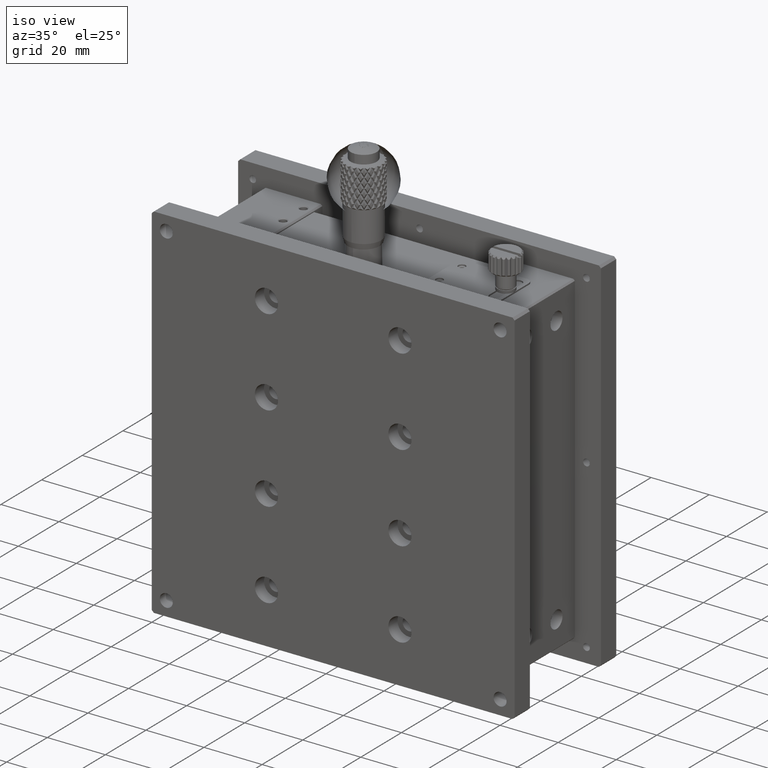
[diagram: clean part render]
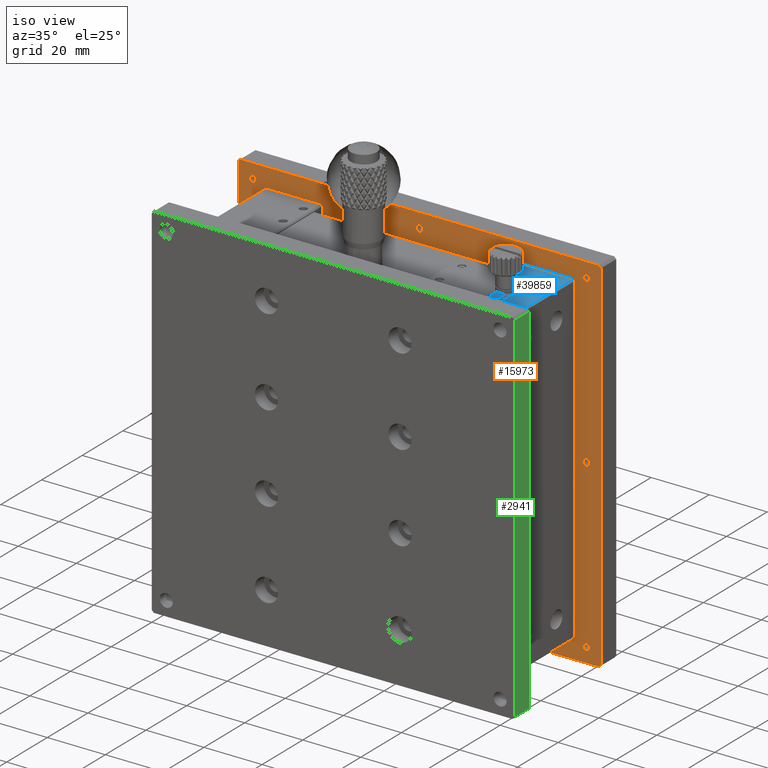
[diagram: same view with three faces highlighted in distinct colors, each labeled with its STEP entity id]
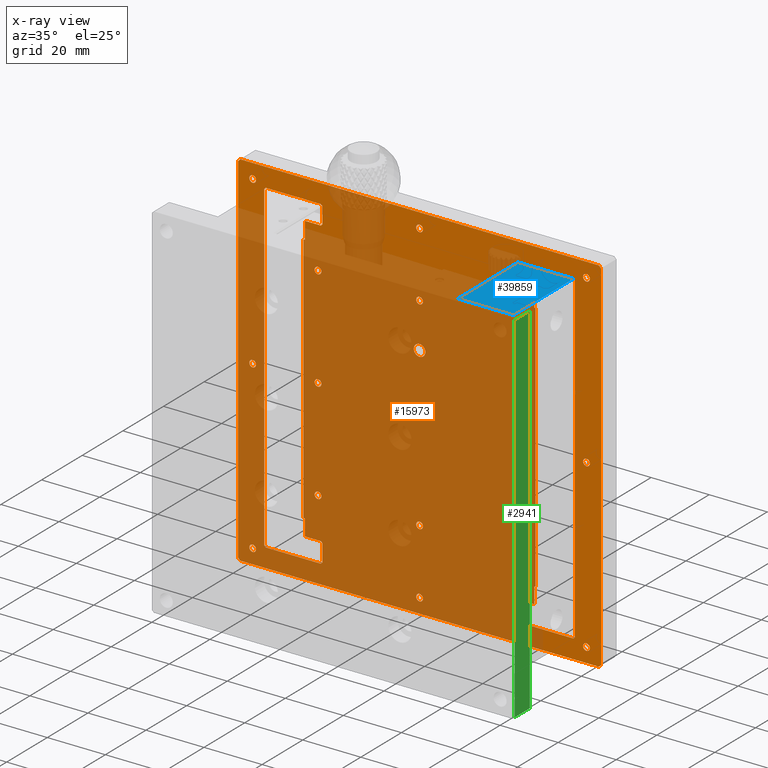
[diagram: x-ray of the same camera — body ghosted, the three highlighted faces saturated]
A machine part, iso view with three faces highlighted in distinct colors.
The next image is the same camera in x-ray (body ghosted, the three faces saturated) — at least one of them is partly hidden behind the body in this view.
Their STEP definitions:

[orange] entity #15973 — the highlighted planar face has unit normal (0, 1, 0).
#246 = DIRECTION ( 'NONE',  ( 0.000000000000000000, 0.000000000000000000, 1.000000000000000000 ) ) ;
#305 = EDGE_LOOP ( 'NONE', ( #38201 ) ) ;
#390 = CARTESIAN_POINT ( 'NONE',  ( 5.000000000000000000, 42.50000000002975753, -118.8321397411868929 ) ) ;
#461 = DIRECTION ( 'NONE',  ( -0.000000000000000000, 0.000000000000000000, -1.000000000000000000 ) ) ;
#503 = CIRCLE ( 'NONE', #21934, 1.167860258874497958 ) ;
#520 = LINE ( 'NONE', #36775, #32795 ) ;
#539 = AXIS2_PLACEMENT_3D ( 'NONE', #27874, #16048, #12284 ) ;
#616 = AXIS2_PLACEMENT_3D ( 'NONE', #2812, #43888, #14640 ) ;
#697 = DIRECTION ( 'NONE',  ( 0.000000000000000000, -0.000000000000000000, 1.000000000000000000 ) ) ;
#756 = DIRECTION ( 'NONE',  ( -0.7071067811865470176, -0.000000000000000000, -0.7071067811865480168 ) ) ;
#760 = ORIENTED_EDGE ( 'NONE', *, *, #20155, .F. ) ;
#824 = LINE ( 'NONE', #41628, #23276 ) ;
#859 = EDGE_LOOP ( 'NONE', ( #52908 ) ) ;
#867 = EDGE_CURVE ( 'NONE', #42678, #47404, #929, .T. ) ;
#900 = CARTESIAN_POINT ( 'NONE',  ( 23.00000000000000000, 42.50000000000000000, -105.9000000000000057 ) ) ;
#929 = LINE ( 'NONE', #37965, #12150 ) ;
#963 = ORIENTED_EDGE ( 'NONE', *, *, #12382, .F. ) ;
#1059 = LINE ( 'NONE', #17439, #40890 ) ;
#1111 = EDGE_CURVE ( 'NONE', #33519, #9800, #29271, .T. ) ;
#1257 = LINE ( 'NONE', #5275, #12554 ) ;
#1340 = ORIENTED_EDGE ( 'NONE', *, *, #31350, .F. ) ;
#1373 = EDGE_LOOP ( 'NONE', ( #31666, #30723, #37780, #44321, #20513, #39236, #35614, #43302 ) ) ;
#1479 = EDGE_CURVE ( 'NONE', #21884, #21884, #9593, .T. ) ;
#1483 = EDGE_CURVE ( 'NONE', #7376, #45803, #51121, .T. ) ;
#1519 = VERTEX_POINT ( 'NONE', #46328 ) ;
#1557 = DIRECTION ( 'NONE',  ( -1.000000000000000000, -0.000000000000000000, 0.000000000000000000 ) ) ;
#1641 = ORIENTED_EDGE ( 'NONE', *, *, #49881, .F. ) ;
#1747 = DIRECTION ( 'NONE',  ( 0.000000000000000000, -0.000000000000000000, 1.000000000000000000 ) ) ;
#1819 = LINE ( 'NONE', #29484, #11221 ) ;
#1887 = VERTEX_POINT ( 'NONE', #52388 ) ;
#1935 = LINE ( 'NONE', #14555, #20259 ) ;
#2117 = VERTEX_POINT ( 'NONE', #30373 ) ;
#2173 = CIRCLE ( 'NONE', #29604, 1.167860258842665866 ) ;
#2212 = EDGE_CURVE ( 'NONE', #47404, #15930, #520, .T. ) ;
#2397 = AXIS2_PLACEMENT_3D ( 'NONE', #28428, #44304, #48820 ) ;
#2492 = CARTESIAN_POINT ( 'NONE',  ( 27.50000000000000000, 42.50000000000682121, -26.33213974115733436 ) ) ;
#2582 = CARTESIAN_POINT ( 'NONE',  ( 115.5000000000000000, 42.50000000000000711, -118.5000000000000142 ) ) ;
#2584 = CARTESIAN_POINT ( 'NONE',  ( 97.50000000000000000, 42.50000000002975753, -61.33213974112550204 ) ) ;
#2798 = LINE ( 'NONE', #39585, #41528 ) ;
#2812 = CARTESIAN_POINT ( 'NONE',  ( 62.50000000000000000, 42.50000000000682121, -5.000000000000030198 ) ) ;
#3062 = EDGE_CURVE ( 'NONE', #45803, #3889, #29407, .T. ) ;
#3541 = EDGE_CURVE ( 'NONE', #37758, #44939, #18172, .T. ) ;
#3681 = CARTESIAN_POINT ( 'NONE',  ( 29.00000000000000355, 42.50000000000000711, -112.0000000000000142 ) ) ;
#3711 = CARTESIAN_POINT ( 'NONE',  ( 29.00000000000000000, 42.50000000000001421, -12.69999999999999929 ) ) ;
#3889 = VERTEX_POINT ( 'NONE', #29412 ) ;
#3969 = FACE_BOUND ( 'NONE', #37787, .T. ) ;
#4056 = CARTESIAN_POINT ( 'NONE',  ( 0.000000000000000000, 42.50000000000000000, -13.19999999999999929 ) ) ;
#4237 = FACE_BOUND ( 'NONE', #859, .T. ) ;
#4333 = VECTOR ( 'NONE', #25128, 1000.000000000000000 ) ;
#4335 = CARTESIAN_POINT ( 'NONE',  ( 96.50000000000000000, 42.50000000000001421, -118.5000000000000142 ) ) ;
#4404 = DIRECTION ( 'NONE',  ( -0.7071067811865480168, -0.000000000000000000, 0.7071067811865470176 ) ) ;
#4524 = ORIENTED_EDGE ( 'NONE', *, *, #31546, .F. ) ;
#4667 = VERTEX_POINT ( 'NONE', #20842 ) ;
#4707 = CARTESIAN_POINT ( 'NONE',  ( 96.00000000000000000, 42.50000000000000000, -7.000000000000000000 ) ) ;
#4807 = CARTESIAN_POINT ( 'NONE',  ( 0.000000000000000000, 42.50000000000000000, -118.5000000000000142 ) ) ;
#5062 = EDGE_CURVE ( 'NONE', #21360, #39017, #42222, .T. ) ;
#5174 = DIRECTION ( 'NONE',  ( -0.000000000000000000, 0.000000000000000000, -1.000000000000000000 ) ) ;
#5235 = LINE ( 'NONE', #34242, #4333 ) ;
#5275 = CARTESIAN_POINT ( 'NONE',  ( 23.00000000000000000, 42.50000000000000000, -19.10000000000000142 ) ) ;
#5395 = DIRECTION ( 'NONE',  ( 0.000000000000000000, 0.000000000000000000, 1.000000000000000000 ) ) ;
#5401 = ORIENTED_EDGE ( 'NONE', *, *, #49412, .F. ) ;
#5502 = CARTESIAN_POINT ( 'NONE',  ( 96.00000000000000000, 42.50000000000000000, -7.000000000000000000 ) ) ;
#5696 = DIRECTION ( 'NONE',  ( -0.000000000000000000, 0.000000000000000000, -1.000000000000000000 ) ) ;
#5768 = FACE_BOUND ( 'NONE', #50552, .T. ) ;
#5837 = LINE ( 'NONE', #38318, #42913 ) ;
#5950 = DIRECTION ( 'NONE',  ( 0.000000000000000000, -1.000000000000000000, -0.000000000000000000 ) ) ;
#6031 = CARTESIAN_POINT ( 'NONE',  ( 96.00000000000000000, 42.50000000000000711, -12.70000000000000107 ) ) ;
#6166 = DIRECTION ( 'NONE',  ( 0.000000000000000000, -0.000000000000000000, 1.000000000000000000 ) ) ;
#6167 = ORIENTED_EDGE ( 'NONE', *, *, #44273, .F. ) ;
#6393 = EDGE_CURVE ( 'NONE', #8123, #23644, #35473, .T. ) ;
#6664 = LINE ( 'NONE', #26802, #39804 ) ;
#6689 = DIRECTION ( 'NONE',  ( 2.675390925547714710E-16, -1.000000000000000000, -0.000000000000000000 ) ) ;
#6718 = VERTEX_POINT ( 'NONE', #32954 ) ;
#6751 = EDGE_LOOP ( 'NONE', ( #760 ) ) ;
#6917 = VECTOR ( 'NONE', #756, 1000.000000000000000 ) ;
#7008 = CARTESIAN_POINT ( 'NONE',  ( 22.50000000000000000, 42.50000000000000000, -105.9000000000000057 ) ) ;
#7206 = CARTESIAN_POINT ( 'NONE',  ( 102.0000000000000142, 42.50000000000000000, -105.9000000000000057 ) ) ;
#7239 = EDGE_CURVE ( 'NONE', #32059, #32059, #39776, .T. ) ;
#7293 = VERTEX_POINT ( 'NONE', #2492 ) ;
#7374 = DIRECTION ( 'NONE',  ( 0.000000000000000000, 0.000000000000000000, 1.000000000000000000 ) ) ;
#7376 = VERTEX_POINT ( 'NONE', #29547 ) ;
#7773 = EDGE_CURVE ( 'NONE', #48497, #1519, #1819, .T. ) ;
#7809 = VERTEX_POINT ( 'NONE', #41558 ) ;
#7812 = EDGE_CURVE ( 'NONE', #30410, #47089, #42075, .T. ) ;
#7940 = LINE ( 'NONE', #37468, #41784 ) ;
#8011 = VERTEX_POINT ( 'NONE', #48281 ) ;
#8042 = EDGE_CURVE ( 'NONE', #33335, #33519, #5235, .T. ) ;
#8123 = VERTEX_POINT ( 'NONE', #48616 ) ;
#8251 = CIRCLE ( 'NONE', #539, 1.167860258813102625 ) ;
#8265 = PLANE ( 'NONE',  #45990 ) ;
#8327 = DIRECTION ( 'NONE',  ( 0.7071067811865416886, 0.000000000000000000, -0.7071067811865532349 ) ) ;
#8439 = CIRCLE ( 'NONE', #51289, 1.167860258874497958 ) ;
#8449 = CARTESIAN_POINT ( 'NONE',  ( 120.0000000000000000, 42.50000000000682121, -3.832139741120954568 ) ) ;
#8452 = EDGE_CURVE ( 'NONE', #16365, #12725, #39466, .T. ) ;
#8551 = ORIENTED_EDGE ( 'NONE', *, *, #3062, .F. ) ;
#8977 = DIRECTION ( 'NONE',  ( 0.7071067811865460184, -0.000000000000000000, -0.7071067811865489050 ) ) ;
#8983 = DIRECTION ( 'NONE',  ( 0.7071067811865474617, -0.000000000000000000, 0.7071067811865474617 ) ) ;
#9226 = VERTEX_POINT ( 'NONE', #390 ) ;
#9230 = AXIS2_PLACEMENT_3D ( 'NONE', #48425, #9867, #7374 ) ;
#9272 = VECTOR ( 'NONE', #37625, 1000.000000000000000 ) ;
#9291 = CARTESIAN_POINT ( 'NONE',  ( 0.000000000000000000, 42.50000000000000000, -118.5000000000000142 ) ) ;
#9446 = CARTESIAN_POINT ( 'NONE',  ( 9.000000000000001776, 42.50000000000000000, 0.000000000000000000 ) ) ;
#9529 = ORIENTED_EDGE ( 'NONE', *, *, #41080, .F. ) ;
#9582 = ORIENTED_EDGE ( 'NONE', *, *, #25888, .F. ) ;
#9584 = EDGE_CURVE ( 'NONE', #24498, #7809, #5837, .T. ) ;
#9593 = CIRCLE ( 'NONE', #15633, 1.167860258849490185 ) ;
#9607 = DIRECTION ( 'NONE',  ( 1.000000000000000000, 0.000000000000000000, -0.000000000000000000 ) ) ;
#9647 = CARTESIAN_POINT ( 'NONE',  ( 23.00000000000000000, 42.50000000000000000, 0.000000000000000000 ) ) ;
#9690 = CARTESIAN_POINT ( 'NONE',  ( 120.0000000000000000, 42.50000000002975753, -62.50000000000000000 ) ) ;
#9762 = EDGE_CURVE ( 'NONE', #52682, #52682, #49731, .T. ) ;
#9770 = CARTESIAN_POINT ( 'NONE',  ( 116.0000000000000000, 42.50000000000001421, -118.0000000000000142 ) ) ;
#9800 = VERTEX_POINT ( 'NONE', #32416 ) ;
#9806 = VECTOR ( 'NONE', #9607, 1000.000000000000000 ) ;
#9867 = DIRECTION ( 'NONE',  ( 0.000000000000000000, -1.000000000000000000, -0.000000000000000000 ) ) ;
#9947 = AXIS2_PLACEMENT_3D ( 'NONE', #40792, #24969, #37563 ) ;
#10149 = EDGE_CURVE ( 'NONE', #41650, #42678, #34613, .T. ) ;
#10172 = CARTESIAN_POINT ( 'NONE',  ( 115.5000000000000000, 42.50000000000000000, -6.500000000000000888 ) ) ;
#10297 = DIRECTION ( 'NONE',  ( 0.000000000000000000, 0.000000000000000000, 1.000000000000000000 ) ) ;
#10334 = EDGE_CURVE ( 'NONE', #25351, #39975, #40237, .T. ) ;
#10430 = CIRCLE ( 'NONE', #37813, 2.000000000000008882 ) ;
#10611 = VECTOR ( 'NONE', #46042, 1000.000000000000000 ) ;
#10647 = ORIENTED_EDGE ( 'NONE', *, *, #17182, .F. ) ;
#10667 = ORIENTED_EDGE ( 'NONE', *, *, #28990, .F. ) ;
#10712 = DIRECTION ( 'NONE',  ( -0.7071067811865500152, 0.000000000000000000, 0.7071067811865450192 ) ) ;
#10872 = CARTESIAN_POINT ( 'NONE',  ( 102.0000000000000142, 42.50000000000000000, -19.10000000000000142 ) ) ;
#10951 = VECTOR ( 'NONE', #39994, 1000.000000000000000 ) ;
#10958 = CARTESIAN_POINT ( 'NONE',  ( 124.2900000000000205, 42.50000000000000000, -3.469446951953613400E-15 ) ) ;
#11039 = ORIENTED_EDGE ( 'NONE', *, *, #1479, .F. ) ;
#11056 = LINE ( 'NONE', #7008, #50915 ) ;
#11221 = VECTOR ( 'NONE', #1557, 1000.000000000000000 ) ;
#11257 = CARTESIAN_POINT ( 'NONE',  ( 23.00000000000000000, 42.50000000000000000, -111.5000000000000000 ) ) ;
#11528 = CARTESIAN_POINT ( 'NONE',  ( 97.50000000000000000, 42.50000000000682121, -26.33213974115733436 ) ) ;
#11755 = VECTOR ( 'NONE', #40480, 1000.000000000000114 ) ;
#12029 = EDGE_CURVE ( 'NONE', #7809, #27112, #29418, .T. ) ;
#12038 = CARTESIAN_POINT ( 'NONE',  ( 125.0000000000000000, 42.50000000000000000, -124.2899999999999920 ) ) ;
#12051 = ORIENTED_EDGE ( 'NONE', *, *, #36260, .F. ) ;
#12126 = ORIENTED_EDGE ( 'NONE', *, *, #51674, .F. ) ;
#12150 = VECTOR ( 'NONE', #17305, 1000.000000000000114 ) ;
#12284 = DIRECTION ( 'NONE',  ( 0.000000000000000000, 0.000000000000000000, 1.000000000000000000 ) ) ;
#12295 = VECTOR ( 'NONE', #15075, 1000.000000000000000 ) ;
#12297 = FACE_BOUND ( 'NONE', #40356, .T. ) ;
#12333 = EDGE_CURVE ( 'NONE', #4667, #33335, #824, .T. ) ;
#12382 = EDGE_CURVE ( 'NONE', #30151, #30151, #10430, .T. ) ;
#12554 = VECTOR ( 'NONE', #21668, 1000.000000000000000 ) ;
#12570 = FACE_BOUND ( 'NONE', #28538, .T. ) ;
#12603 = ORIENTED_EDGE ( 'NONE', *, *, #7239, .F. ) ;
#12725 = VERTEX_POINT ( 'NONE', #20463 ) ;
#12772 = LINE ( 'NONE', #33954, #23750 ) ;
#13241 = ORIENTED_EDGE ( 'NONE', *, *, #9584, .F. ) ;
#13252 = ORIENTED_EDGE ( 'NONE', *, *, #19051, .F. ) ;
#13457 = DIRECTION ( 'NONE',  ( -0.000000000000000000, -1.000000000000000000, -0.000000000000000000 ) ) ;
#13570 = DIRECTION ( 'NONE',  ( -1.000000000000000000, 0.000000000000000000, -0.000000000000000000 ) ) ;
#13853 = EDGE_LOOP ( 'NONE', ( #50687 ) ) ;
#13974 = ORIENTED_EDGE ( 'NONE', *, *, #14874, .F. ) ;
#14105 = AXIS2_PLACEMENT_3D ( 'NONE', #21999, #38638, #26008 ) ;
#14130 = DIRECTION ( 'NONE',  ( 2.675390925547706328E-16, -1.000000000000000000, -0.000000000000000000 ) ) ;
#14249 = DIRECTION ( 'NONE',  ( 0.7071067811865474617, -0.000000000000000000, -0.7071067811865474617 ) ) ;
#14488 = DIRECTION ( 'NONE',  ( -1.000000000000000000, 0.000000000000000000, 0.000000000000000000 ) ) ;
#14555 = CARTESIAN_POINT ( 'NONE',  ( 0.000000000000000000, 42.50000000000000000, -6.500000000000000888 ) ) ;
#14640 = DIRECTION ( 'NONE',  ( 0.000000000000000000, 0.000000000000000000, 1.000000000000000000 ) ) ;
#14673 = DIRECTION ( 'NONE',  ( -0.000000000000000000, 0.000000000000000000, -1.000000000000000000 ) ) ;
#14874 = EDGE_CURVE ( 'NONE', #41354, #25351, #1257, .T. ) ;
#15075 = DIRECTION ( 'NONE',  ( -0.7071067811865480168, -0.000000000000000000, 0.7071067811865470176 ) ) ;
#15202 = AXIS2_PLACEMENT_3D ( 'NONE', #16945, #30096, #37603 ) ;
#15219 = CARTESIAN_POINT ( 'NONE',  ( 102.0000000000000142, 42.50000000000000000, -105.9000000000000057 ) ) ;
#15456 = CARTESIAN_POINT ( 'NONE',  ( 62.50000000000000000, 42.50000000000682121, -26.33213974115733436 ) ) ;
#15633 = AXIS2_PLACEMENT_3D ( 'NONE', #34266, #14130, #50586 ) ;
#15739 = ORIENTED_EDGE ( 'NONE', *, *, #8452, .F. ) ;
#15930 = VERTEX_POINT ( 'NONE', #11257 ) ;
#15945 = CARTESIAN_POINT ( 'NONE',  ( 27.50000000000000000, 42.50000000002975753, -61.33213974112550204 ) ) ;
#15973 = ADVANCED_FACE ( 'NONE', ( #50550, #16314, #49050, #21612, #24380, #40744, #3969, #4237, #16579, #21875, #5768, #38245, #12570, #42549, #34230, #32700, #45310, #18110, #37974, #17578, #12297 ), #8265, .F. ) ;
#16025 = CARTESIAN_POINT ( 'NONE',  ( 27.50000000000000000, 42.50000000002975753, -62.50000000000000000 ) ) ;
#16033 = VERTEX_POINT ( 'NONE', #6031 ) ;
#16048 = DIRECTION ( 'NONE',  ( 0.000000000000000000, -1.000000000000000000, -0.000000000000000000 ) ) ;
#16095 = DIRECTION ( 'NONE',  ( 0.000000000000000000, -1.000000000000000000, -0.000000000000000000 ) ) ;
#16224 = LINE ( 'NONE', #33417, #25323 ) ;
#16314 = FACE_BOUND ( 'NONE', #21198, .T. ) ;
#16338 = LINE ( 'NONE', #40494, #10951 ) ;
#16365 = VERTEX_POINT ( 'NONE', #51294 ) ;
#16454 = VECTOR ( 'NONE', #8327, 1000.000000000000114 ) ;
#16579 = FACE_BOUND ( 'NONE', #51308, .T. ) ;
#16802 = EDGE_CURVE ( 'NONE', #6718, #33991, #27380, .T. ) ;
#16945 = CARTESIAN_POINT ( 'NONE',  ( 27.50000000000000000, 42.50000000000682121, -27.50000000000000000 ) ) ;
#16951 = ORIENTED_EDGE ( 'NONE', *, *, #16802, .F. ) ;
#17182 = EDGE_CURVE ( 'NONE', #3889, #43167, #7940, .T. ) ;
#17192 = DIRECTION ( 'NONE',  ( 0.7071067811865505703, 0.000000000000000000, 0.7071067811865444641 ) ) ;
#17305 = DIRECTION ( 'NONE',  ( -0.7071067811865474617, -0.000000000000000000, 0.7071067811865474617 ) ) ;
#17400 = ORIENTED_EDGE ( 'NONE', *, *, #2212, .F. ) ;
#17439 = CARTESIAN_POINT ( 'NONE',  ( 29.00000000000000000, 42.50000000000000000, 0.000000000000000000 ) ) ;
#17505 = VECTOR ( 'NONE', #5174, 1000.000000000000000 ) ;
#17528 = EDGE_CURVE ( 'NONE', #7293, #7293, #44376, .T. ) ;
#17536 = CIRCLE ( 'NONE', #47538, 1.167860258842665866 ) ;
#17578 = FACE_BOUND ( 'NONE', #27336, .T. ) ;
#17645 = CIRCLE ( 'NONE', #9947, 1.167860258874497958 ) ;
#17758 = EDGE_CURVE ( 'NONE', #16033, #51161, #38939, .T. ) ;
#17927 = DIRECTION ( 'NONE',  ( -0.7071067811865474617, -0.000000000000000000, -0.7071067811865474617 ) ) ;
#17991 = DIRECTION ( 'NONE',  ( 0.000000000000000000, 0.000000000000000000, 1.000000000000000000 ) ) ;
#18110 = FACE_BOUND ( 'NONE', #305, .T. ) ;
#18172 = LINE ( 'NONE', #33508, #27709 ) ;
#18244 = EDGE_CURVE ( 'NONE', #46772, #7376, #41117, .T. ) ;
#18350 = CARTESIAN_POINT ( 'NONE',  ( 28.99999999999999645, 42.50000000000000711, -118.0000000000000142 ) ) ;
#18564 = CARTESIAN_POINT ( 'NONE',  ( 9.500000000000000000, 42.50000000000000000, -6.500000000000000888 ) ) ;
#18702 = ORIENTED_EDGE ( 'NONE', *, *, #23175, .F. ) ;
#18744 = ORIENTED_EDGE ( 'NONE', *, *, #48200, .F. ) ;
#18921 = CARTESIAN_POINT ( 'NONE',  ( 26.33213974115050959, 42.49999999999560174, -97.50000000000000000 ) ) ;
#18930 = CARTESIAN_POINT ( 'NONE',  ( 23.00000000000000000, 42.50000000000000000, -13.19999999999999929 ) ) ;
#19051 = EDGE_CURVE ( 'NONE', #39017, #16365, #48902, .T. ) ;
#19323 = DIRECTION ( 'NONE',  ( -0.000000000000000000, 0.000000000000000000, -1.000000000000000000 ) ) ;
#19325 = CARTESIAN_POINT ( 'NONE',  ( 62.50000000000000000, 42.50000000002975753, -61.33213974112550204 ) ) ;
#19665 = LINE ( 'NONE', #4056, #43523 ) ;
#19810 = VERTEX_POINT ( 'NONE', #30246 ) ;
#20116 = EDGE_LOOP ( 'NONE', ( #1340 ) ) ;
#20155 = EDGE_CURVE ( 'NONE', #41097, #41097, #8439, .T. ) ;
#20163 = VECTOR ( 'NONE', #10297, 1000.000000000000000 ) ;
#20259 = VECTOR ( 'NONE', #51004, 1000.000000000000000 ) ;
#20425 = DIRECTION ( 'NONE',  ( 0.000000000000000000, 0.000000000000000000, 1.000000000000000000 ) ) ;
#20463 = CARTESIAN_POINT ( 'NONE',  ( 102.5000000000000142, 42.50000000000000000, -105.9000000000000057 ) ) ;
#20513 = ORIENTED_EDGE ( 'NONE', *, *, #1111, .F. ) ;
#20559 = EDGE_CURVE ( 'NONE', #50192, #1887, #31383, .T. ) ;
#20678 = CARTESIAN_POINT ( 'NONE',  ( 97.50000000000000000, 42.50000000000682121, -27.50000000000000000 ) ) ;
#20842 = CARTESIAN_POINT ( 'NONE',  ( 0.000000000000000000, 42.50000000000000000, -0.7099999999999925260 ) ) ;
#21046 = ORIENTED_EDGE ( 'NONE', *, *, #10149, .F. ) ;
#21198 = EDGE_LOOP ( 'NONE', ( #12603 ) ) ;
#21360 = VERTEX_POINT ( 'NONE', #48199 ) ;
#21612 = FACE_BOUND ( 'NONE', #31062, .T. ) ;
#21668 = DIRECTION ( 'NONE',  ( 1.000000000000000000, -0.000000000000000000, 0.000000000000000000 ) ) ;
#21875 = FACE_BOUND ( 'NONE', #28098, .T. ) ;
#21884 = VERTEX_POINT ( 'NONE', #18921 ) ;
#21887 = ORIENTED_EDGE ( 'NONE', *, *, #7812, .F. ) ;
#21899 = VECTOR ( 'NONE', #17927, 1000.000000000000114 ) ;
#21934 = AXIS2_PLACEMENT_3D ( 'NONE', #30299, #45604, #46657 ) ;
#21999 = CARTESIAN_POINT ( 'NONE',  ( 62.50000000000000000, 42.49999999999560174, -97.50000000000000000 ) ) ;
#22177 = VECTOR ( 'NONE', #13570, 1000.000000000000000 ) ;
#22391 = VERTEX_POINT ( 'NONE', #15219 ) ;
#22527 = EDGE_CURVE ( 'NONE', #47089, #22938, #51025, .T. ) ;
#22726 = CARTESIAN_POINT ( 'NONE',  ( 102.0000000000000142, 42.50000000000000000, 0.000000000000000000 ) ) ;
#22777 = DIRECTION ( 'NONE',  ( 0.7071067811865474617, -0.000000000000000000, 0.7071067811865474617 ) ) ;
#22819 = CARTESIAN_POINT ( 'NONE',  ( 23.00000000000000000, 42.50000000000000000, 0.000000000000000000 ) ) ;
#22882 = EDGE_CURVE ( 'NONE', #15930, #29245, #29553, .T. ) ;
#22938 = VERTEX_POINT ( 'NONE', #30613 ) ;
#23074 = CARTESIAN_POINT ( 'NONE',  ( 97.50000000000000000, 42.49999999999560174, -97.50000000000000000 ) ) ;
#23175 = EDGE_CURVE ( 'NONE', #1519, #19810, #28165, .T. ) ;
#23276 = VECTOR ( 'NONE', #17192, 1000.000000000000000 ) ;
#23331 = CARTESIAN_POINT ( 'NONE',  ( 0.7099999999999939693, 42.50000000000000000, -125.0000000000000000 ) ) ;
#23392 = DIRECTION ( 'NONE',  ( -1.000000000000000000, -0.000000000000000000, 0.000000000000000000 ) ) ;
#23644 = VERTEX_POINT ( 'NONE', #28132 ) ;
#23750 = VECTOR ( 'NONE', #8977, 1000.000000000000114 ) ;
#24084 = VECTOR ( 'NONE', #19323, 1000.000000000000000 ) ;
#24380 = FACE_BOUND ( 'NONE', #39418, .T. ) ;
#24498 = VERTEX_POINT ( 'NONE', #10172 ) ;
#24584 = EDGE_CURVE ( 'NONE', #50442, #50442, #8251, .T. ) ;
#24707 = ORIENTED_EDGE ( 'NONE', *, *, #18244, .F. ) ;
#24817 = CARTESIAN_POINT ( 'NONE',  ( 0.7099999999999894174, 42.50000000000000000, -125.0000000000000000 ) ) ;
#24969 = DIRECTION ( 'NONE',  ( 0.000000000000000000, -1.000000000000000000, -0.000000000000000000 ) ) ;
#25070 = ORIENTED_EDGE ( 'NONE', *, *, #22527, .F. ) ;
#25128 = DIRECTION ( 'NONE',  ( 1.000000000000000000, 0.000000000000000000, -0.000000000000000000 ) ) ;
#25168 = CARTESIAN_POINT ( 'NONE',  ( 96.00000000000000000, 42.50000000000000000, 0.000000000000000000 ) ) ;
#25250 = DIRECTION ( 'NONE',  ( 0.000000000000000000, -1.000000000000000000, -0.000000000000000000 ) ) ;
#25323 = VECTOR ( 'NONE', #4404, 1000.000000000000000 ) ;
#25351 = VERTEX_POINT ( 'NONE', #27749 ) ;
#25496 = EDGE_CURVE ( 'NONE', #23644, #30410, #1935, .T. ) ;
#25527 = CARTESIAN_POINT ( 'NONE',  ( 62.50000000000000000, 42.50000000000000000, -43.00000000000000000 ) ) ;
#25542 = CIRCLE ( 'NONE', #2397, 1.167860258879075852 ) ;
#25694 = EDGE_CURVE ( 'NONE', #30345, #30345, #47679, .T. ) ;
#25783 = ORIENTED_EDGE ( 'NONE', *, *, #9762, .F. ) ;
#25888 = EDGE_CURVE ( 'NONE', #22938, #48189, #12772, .T. ) ;
#26008 = DIRECTION ( 'NONE',  ( -1.000000000000000000, 0.000000000000000000, 0.000000000000000000 ) ) ;
#26086 = DIRECTION ( 'NONE',  ( 0.000000000000000000, 0.000000000000000000, 1.000000000000000000 ) ) ;
#26802 = CARTESIAN_POINT ( 'NONE',  ( 29.00000000000000000, 42.50000000000001421, -118.0000000000000142 ) ) ;
#26913 = AXIS2_PLACEMENT_3D ( 'NONE', #37052, #25250, #20425 ) ;
#26983 = CIRCLE ( 'NONE', #40674, 1.167860258874497958 ) ;
#27112 = VERTEX_POINT ( 'NONE', #5502 ) ;
#27336 = EDGE_LOOP ( 'NONE', ( #24707, #49493, #18702, #52482, #43922, #35310, #15739, #13252, #36052, #5401, #48293, #32425, #50661, #13241, #10667, #10647, #8551, #36601 ) ) ;
#27380 = LINE ( 'NONE', #3711, #11755 ) ;
#27391 = VERTEX_POINT ( 'NONE', #19325 ) ;
#27709 = VECTOR ( 'NONE', #42886, 1000.000000000000114 ) ;
#27741 = CARTESIAN_POINT ( 'NONE',  ( 0.000000000000000000, 42.50000000000000000, -124.2900000000000063 ) ) ;
#27749 = CARTESIAN_POINT ( 'NONE',  ( 23.00000000000000000, 42.50000000000000000, -19.10000000000000142 ) ) ;
#27874 = CARTESIAN_POINT ( 'NONE',  ( 120.0000000000000000, 42.50000000002975753, -120.0000000000000000 ) ) ;
#28098 = EDGE_LOOP ( 'NONE', ( #25783 ) ) ;
#28132 = CARTESIAN_POINT ( 'NONE',  ( 28.50000000000000355, 42.50000000000000000, -6.500000000000000888 ) ) ;
#28165 = LINE ( 'NONE', #41824, #21899 ) ;
#28351 = ORIENTED_EDGE ( 'NONE', *, *, #10334, .F. ) ;
#28428 = CARTESIAN_POINT ( 'NONE',  ( 120.0000000000000000, 42.50000000000682121, -5.000000000000030198 ) ) ;
#28538 = EDGE_LOOP ( 'NONE', ( #40330 ) ) ;
#28759 = DIRECTION ( 'NONE',  ( 1.000000000000000000, 0.000000000000000000, -0.000000000000000000 ) ) ;
#28763 = VERTEX_POINT ( 'NONE', #51392 ) ;
#28990 = EDGE_CURVE ( 'NONE', #43167, #24498, #16224, .T. ) ;
#29245 = VERTEX_POINT ( 'NONE', #900 ) ;
#29271 = LINE ( 'NONE', #40804, #16454 ) ;
#29314 = DIRECTION ( 'NONE',  ( 0.7071067811865474617, -0.000000000000000000, -0.7071067811865474617 ) ) ;
#29407 = LINE ( 'NONE', #9770, #31156 ) ;
#29412 = CARTESIAN_POINT ( 'NONE',  ( 116.0000000000000000, 42.50000000000000711, -118.0000000000000142 ) ) ;
#29418 = LINE ( 'NONE', #4707, #10611 ) ;
#29436 = DIRECTION ( 'NONE',  ( 0.000000000000000000, 0.000000000000000000, 1.000000000000000000 ) ) ;
#29484 = CARTESIAN_POINT ( 'NONE',  ( 0.000000000000000000, 42.50000000000000000, -111.5000000000000000 ) ) ;
#29547 = CARTESIAN_POINT ( 'NONE',  ( 96.50000000000000000, 42.50000000000000711, -118.5000000000000142 ) ) ;
#29553 = LINE ( 'NONE', #9647, #33047 ) ;
#29604 = AXIS2_PLACEMENT_3D ( 'NONE', #33540, #16095, #246 ) ;
#30096 = DIRECTION ( 'NONE',  ( 0.000000000000000000, -1.000000000000000000, -0.000000000000000000 ) ) ;
#30151 = VERTEX_POINT ( 'NONE', #49727 ) ;
#30246 = CARTESIAN_POINT ( 'NONE',  ( 96.00000000000000000, 42.50000000000000711, -112.0000000000000000 ) ) ;
#30299 = CARTESIAN_POINT ( 'NONE',  ( 97.50000000000000000, 42.50000000002975753, -62.50000000000000000 ) ) ;
#30322 = LINE ( 'NONE', #42949, #41010 ) ;
#30345 = VERTEX_POINT ( 'NONE', #46440 ) ;
#30373 = CARTESIAN_POINT ( 'NONE',  ( 22.50000000000000000, 42.50000000000000000, -105.9000000000000057 ) ) ;
#30410 = VERTEX_POINT ( 'NONE', #18564 ) ;
#30613 = CARTESIAN_POINT ( 'NONE',  ( 9.000000000000008882, 42.50000000000000000, -118.0000000000000142 ) ) ;
#30723 = ORIENTED_EDGE ( 'NONE', *, *, #52237, .F. ) ;
#30874 = ORIENTED_EDGE ( 'NONE', *, *, #50023, .F. ) ;
#30922 = CARTESIAN_POINT ( 'NONE',  ( 28.50000000000000000, 42.50000000000000000, -6.500000000000000888 ) ) ;
#31062 = EDGE_LOOP ( 'NONE', ( #6167 ) ) ;
#31156 = VECTOR ( 'NONE', #8983, 1000.000000000000114 ) ;
#31350 = EDGE_CURVE ( 'NONE', #38671, #38671, #44266, .T. ) ;
#31383 = LINE ( 'NONE', #23331, #39348 ) ;
#31509 = LINE ( 'NONE', #27741, #20163 ) ;
#31546 = EDGE_CURVE ( 'NONE', #27391, #27391, #17645, .T. ) ;
#31652 = DIRECTION ( 'NONE',  ( -1.000000000000000000, -0.000000000000000000, 0.000000000000000000 ) ) ;
#31666 = ORIENTED_EDGE ( 'NONE', *, *, #20559, .F. ) ;
#31686 = CARTESIAN_POINT ( 'NONE',  ( 29.00000000000000000, 42.50000000000000711, -12.69999999999999929 ) ) ;
#31743 = ORIENTED_EDGE ( 'NONE', *, *, #22882, .F. ) ;
#31854 = EDGE_CURVE ( 'NONE', #27112, #16033, #32438, .T. ) ;
#32059 = VERTEX_POINT ( 'NONE', #48411 ) ;
#32183 = VECTOR ( 'NONE', #31652, 1000.000000000000000 ) ;
#32416 = CARTESIAN_POINT ( 'NONE',  ( 125.0000000000000000, 42.50000000000000000, -0.7099999999999998535 ) ) ;
#32425 = ORIENTED_EDGE ( 'NONE', *, *, #31854, .F. ) ;
#32438 = LINE ( 'NONE', #25168, #36506 ) ;
#32466 = VERTEX_POINT ( 'NONE', #11528 ) ;
#32522 = CARTESIAN_POINT ( 'NONE',  ( 5.000000000000000000, 42.50000000002975753, -61.33213974112550204 ) ) ;
#32700 = FACE_BOUND ( 'NONE', #6751, .T. ) ;
#32751 = DIRECTION ( 'NONE',  ( 0.000000000000000000, -1.000000000000000000, -0.000000000000000000 ) ) ;
#32795 = VECTOR ( 'NONE', #37298, 1000.000000000000000 ) ;
#32954 = CARTESIAN_POINT ( 'NONE',  ( 28.50000000000000355, 42.50000000000000711, -13.19999999999999929 ) ) ;
#33047 = VECTOR ( 'NONE', #42137, 1000.000000000000000 ) ;
#33133 = ORIENTED_EDGE ( 'NONE', *, *, #867, .F. ) ;
#33151 = CARTESIAN_POINT ( 'NONE',  ( 62.50000000000000000, 42.50000000000682121, -3.832139741120954568 ) ) ;
#33335 = VERTEX_POINT ( 'NONE', #44804 ) ;
#33399 = CARTESIAN_POINT ( 'NONE',  ( 102.0000000000000142, 42.50000000000000000, 0.000000000000000000 ) ) ;
#33417 = CARTESIAN_POINT ( 'NONE',  ( 115.5000000000000000, 42.50000000000000000, -6.500000000000000888 ) ) ;
#33508 = CARTESIAN_POINT ( 'NONE',  ( 125.0000000000000000, 42.50000000000000000, -124.2900000000000063 ) ) ;
#33519 = VERTEX_POINT ( 'NONE', #10958 ) ;
#33540 = CARTESIAN_POINT ( 'NONE',  ( 62.50000000000000000, 42.50000000000682121, -27.50000000000000000 ) ) ;
#33684 = CARTESIAN_POINT ( 'NONE',  ( 96.00000000000000000, 42.50000000000000711, -118.0000000000000284 ) ) ;
#33829 = DIRECTION ( 'NONE',  ( 0.000000000000000000, -0.000000000000000000, 1.000000000000000000 ) ) ;
#33861 = CARTESIAN_POINT ( 'NONE',  ( 22.50000000000000000, 42.50000000000000000, 0.000000000000000000 ) ) ;
#33954 = CARTESIAN_POINT ( 'NONE',  ( 9.500000000000010658, 42.50000000000000000, -118.5000000000000142 ) ) ;
#33963 = CARTESIAN_POINT ( 'NONE',  ( 0.000000000000000000, 42.50000000000000000, 0.000000000000000000 ) ) ;
#33991 = VERTEX_POINT ( 'NONE', #31686 ) ;
#34096 = CARTESIAN_POINT ( 'NONE',  ( 9.500000000000012434, 42.50000000000000000, -118.5000000000000142 ) ) ;
#34132 = EDGE_LOOP ( 'NONE', ( #25070, #21887, #46094, #41444, #18744, #16951, #12126, #28351, #13974, #9529, #12051, #31743, #17400, #33133, #21046, #37141, #46927, #9582 ) ) ;
#34154 = DIRECTION ( 'NONE',  ( 0.000000000000000000, -1.000000000000000000, -0.000000000000000000 ) ) ;
#34172 = CARTESIAN_POINT ( 'NONE',  ( 102.0000000000000142, 42.50000000000000000, -111.5000000000000000 ) ) ;
#34230 = FACE_BOUND ( 'NONE', #39297, .T. ) ;
#34242 = CARTESIAN_POINT ( 'NONE',  ( 0.7099999999999999645, 42.50000000000000000, 0.000000000000000000 ) ) ;
#34266 = CARTESIAN_POINT ( 'NONE',  ( 27.50000000000000000, 42.49999999999560174, -97.50000000000000000 ) ) ;
#34286 = EDGE_CURVE ( 'NONE', #28763, #41650, #6664, .T. ) ;
#34473 = EDGE_CURVE ( 'NONE', #19810, #46772, #2798, .T. ) ;
#34613 = LINE ( 'NONE', #50428, #43743 ) ;
#34890 = DIRECTION ( 'NONE',  ( 0.000000000000000000, -0.000000000000000000, 1.000000000000000000 ) ) ;
#35061 = DIRECTION ( 'NONE',  ( 1.000000000000000000, 0.000000000000000000, -0.000000000000000000 ) ) ;
#35310 = ORIENTED_EDGE ( 'NONE', *, *, #37608, .F. ) ;
#35473 = LINE ( 'NONE', #30922, #12295 ) ;
#35543 = DIRECTION ( 'NONE',  ( -0.000000000000000000, 0.000000000000000000, -1.000000000000000000 ) ) ;
#35600 = CARTESIAN_POINT ( 'NONE',  ( 28.50000000000000355, 42.50000000000000711, -111.5000000000000000 ) ) ;
#35603 = CARTESIAN_POINT ( 'NONE',  ( 96.50000000000000000, 42.50000000000000711, -13.19999999999999929 ) ) ;
#35614 = ORIENTED_EDGE ( 'NONE', *, *, #12333, .F. ) ;
#35625 = VECTOR ( 'NONE', #5696, 1000.000000000000000 ) ;
#35653 = EDGE_CURVE ( 'NONE', #52300, #52300, #39812, .T. ) ;
#36052 = ORIENTED_EDGE ( 'NONE', *, *, #5062, .F. ) ;
#36206 = EDGE_CURVE ( 'NONE', #8011, #8011, #26983, .T. ) ;
#36260 = EDGE_CURVE ( 'NONE', #29245, #2117, #11056, .T. ) ;
#36395 = EDGE_CURVE ( 'NONE', #32466, #32466, #17536, .T. ) ;
#36506 = VECTOR ( 'NONE', #461, 1000.000000000000000 ) ;
#36517 = EDGE_LOOP ( 'NONE', ( #43116 ) ) ;
#36600 = CIRCLE ( 'NONE', #616, 1.167860258879075852 ) ;
#36601 = ORIENTED_EDGE ( 'NONE', *, *, #1483, .F. ) ;
#36775 = CARTESIAN_POINT ( 'NONE',  ( 0.000000000000000000, 42.50000000000000000, -111.5000000000000000 ) ) ;
#37052 = CARTESIAN_POINT ( 'NONE',  ( 5.000000000000000000, 42.50000000000682121, -5.000000000000000000 ) ) ;
#37141 = ORIENTED_EDGE ( 'NONE', *, *, #34286, .F. ) ;
#37266 = CARTESIAN_POINT ( 'NONE',  ( 116.0000000000000000, 42.50000000000000000, -7.000000000000000888 ) ) ;
#37298 = DIRECTION ( 'NONE',  ( -1.000000000000000000, -0.000000000000000000, 0.000000000000000000 ) ) ;
#37468 = CARTESIAN_POINT ( 'NONE',  ( 116.0000000000000000, 42.50000000000000000, 0.000000000000000000 ) ) ;
#37526 = CARTESIAN_POINT ( 'NONE',  ( 9.000000000000001776, 42.50000000000000000, -7.000000000000000000 ) ) ;
#37563 = DIRECTION ( 'NONE',  ( 0.000000000000000000, 0.000000000000000000, 1.000000000000000000 ) ) ;
#37603 = DIRECTION ( 'NONE',  ( 0.000000000000000000, 0.000000000000000000, 1.000000000000000000 ) ) ;
#37608 = EDGE_CURVE ( 'NONE', #12725, #22391, #51742, .T. ) ;
#37625 = DIRECTION ( 'NONE',  ( 1.000000000000000000, -0.000000000000000000, 0.000000000000000000 ) ) ;
#37758 = VERTEX_POINT ( 'NONE', #12038 ) ;
#37780 = ORIENTED_EDGE ( 'NONE', *, *, #3541, .F. ) ;
#37787 = EDGE_LOOP ( 'NONE', ( #41039 ) ) ;
#37813 = AXIS2_PLACEMENT_3D ( 'NONE', #25527, #13457, #17991 ) ;
#37965 = CARTESIAN_POINT ( 'NONE',  ( 28.50000000000000000, 42.50000000000001421, -111.5000000000000000 ) ) ;
#37974 = FACE_BOUND ( 'NONE', #34132, .T. ) ;
#38201 = ORIENTED_EDGE ( 'NONE', *, *, #17528, .F. ) ;
#38226 = AXIS2_PLACEMENT_3D ( 'NONE', #42731, #5950, #5395 ) ;
#38245 = FACE_BOUND ( 'NONE', #13853, .T. ) ;
#38318 = CARTESIAN_POINT ( 'NONE',  ( 0.000000000000000000, 42.50000000000000000, -6.500000000000000888 ) ) ;
#38589 = EDGE_LOOP ( 'NONE', ( #4524 ) ) ;
#38591 = DIRECTION ( 'NONE',  ( -1.000000000000000000, -0.000000000000000000, 0.000000000000000000 ) ) ;
#38638 = DIRECTION ( 'NONE',  ( 2.675390925547703370E-16, -1.000000000000000000, -0.000000000000000000 ) ) ;
#38671 = VERTEX_POINT ( 'NONE', #43499 ) ;
#38684 = DIRECTION ( 'NONE',  ( 0.000000000000000000, -0.000000000000000000, 1.000000000000000000 ) ) ;
#38939 = LINE ( 'NONE', #47231, #43525 ) ;
#39017 = VERTEX_POINT ( 'NONE', #10872 ) ;
#39074 = VECTOR ( 'NONE', #14673, 1000.000000000000000 ) ;
#39236 = ORIENTED_EDGE ( 'NONE', *, *, #8042, .F. ) ;
#39297 = EDGE_LOOP ( 'NONE', ( #30874 ) ) ;
#39348 = VECTOR ( 'NONE', #10712, 1000.000000000000000 ) ;
#39418 = EDGE_LOOP ( 'NONE', ( #41930 ) ) ;
#39466 = LINE ( 'NONE', #39989, #24084 ) ;
#39585 = CARTESIAN_POINT ( 'NONE',  ( 96.00000000000000000, 42.50000000000000000, 0.000000000000000000 ) ) ;
#39639 = VECTOR ( 'NONE', #35061, 1000.000000000000000 ) ;
#39776 = CIRCLE ( 'NONE', #26913, 1.167860258879045432 ) ;
#39804 = VECTOR ( 'NONE', #22777, 1000.000000000000114 ) ;
#39812 = CIRCLE ( 'NONE', #14105, 1.167860258849490185 ) ;
#39975 = VERTEX_POINT ( 'NONE', #18930 ) ;
#39989 = CARTESIAN_POINT ( 'NONE',  ( 102.5000000000000142, 42.50000000000000000, 0.000000000000000000 ) ) ;
#39994 = DIRECTION ( 'NONE',  ( 0.000000000000000000, 0.000000000000000000, -1.000000000000000000 ) ) ;
#40020 = DIRECTION ( 'NONE',  ( 0.000000000000000000, 0.000000000000000000, 1.000000000000000000 ) ) ;
#40153 = LINE ( 'NONE', #22726, #39074 ) ;
#40237 = LINE ( 'NONE', #22819, #51309 ) ;
#40252 = CARTESIAN_POINT ( 'NONE',  ( 61.33213974115051315, 42.49999999999560174, -97.50000000000000000 ) ) ;
#40330 = ORIENTED_EDGE ( 'NONE', *, *, #24584, .F. ) ;
#40356 = EDGE_LOOP ( 'NONE', ( #963 ) ) ;
#40480 = DIRECTION ( 'NONE',  ( 0.7071067811865474617, -0.000000000000000000, 0.7071067811865474617 ) ) ;
#40494 = CARTESIAN_POINT ( 'NONE',  ( 125.0000000000000000, 42.50000000000000000, -0.7099999999999999645 ) ) ;
#40578 = CARTESIAN_POINT ( 'NONE',  ( 102.5000000000000142, 42.50000000000000000, -19.10000000000000142 ) ) ;
#40674 = AXIS2_PLACEMENT_3D ( 'NONE', #9690, #34154, #26086 ) ;
#40744 = FACE_BOUND ( 'NONE', #36517, .T. ) ;
#40792 = CARTESIAN_POINT ( 'NONE',  ( 62.50000000000000000, 42.50000000002975753, -62.50000000000000000 ) ) ;
#40804 = CARTESIAN_POINT ( 'NONE',  ( 124.2900000000000063, 42.50000000000000000, 0.000000000000000000 ) ) ;
#40890 = VECTOR ( 'NONE', #33829, 1000.000000000000000 ) ;
#41010 = VECTOR ( 'NONE', #46680, 1000.000000000000000 ) ;
#41039 = ORIENTED_EDGE ( 'NONE', *, *, #25694, .F. ) ;
#41080 = EDGE_CURVE ( 'NONE', #2117, #41354, #50455, .T. ) ;
#41097 = VERTEX_POINT ( 'NONE', #32522 ) ;
#41117 = LINE ( 'NONE', #4335, #52066 ) ;
#41354 = VERTEX_POINT ( 'NONE', #50324 ) ;
#41400 = CARTESIAN_POINT ( 'NONE',  ( 9.000000000000001776, 42.50000000000000000, -7.000000000000000888 ) ) ;
#41444 = ORIENTED_EDGE ( 'NONE', *, *, #6393, .F. ) ;
#41528 = VECTOR ( 'NONE', #35543, 1000.000000000000000 ) ;
#41558 = CARTESIAN_POINT ( 'NONE',  ( 96.50000000000001421, 42.50000000000000000, -6.499999999999996447 ) ) ;
#41628 = CARTESIAN_POINT ( 'NONE',  ( 0.000000000000000000, 42.50000000000000000, -0.7099999999999939693 ) ) ;
#41629 = VECTOR ( 'NONE', #38684, 1000.000000000000000 ) ;
#41633 = CARTESIAN_POINT ( 'NONE',  ( 120.0000000000000000, 42.50000000002975753, -118.8321397411868929 ) ) ;
#41650 = VERTEX_POINT ( 'NONE', #18350 ) ;
#41784 = VECTOR ( 'NONE', #697, 1000.000000000000000 ) ;
#41824 = CARTESIAN_POINT ( 'NONE',  ( 96.00000000000000000, 42.50000000000001421, -112.0000000000000000 ) ) ;
#41930 = ORIENTED_EDGE ( 'NONE', *, *, #36395, .F. ) ;
#42075 = LINE ( 'NONE', #37526, #6917 ) ;
#42137 = DIRECTION ( 'NONE',  ( 0.000000000000000000, -0.000000000000000000, 1.000000000000000000 ) ) ;
#42222 = LINE ( 'NONE', #33399, #17505 ) ;
#42378 = EDGE_CURVE ( 'NONE', #46866, #46866, #503, .T. ) ;
#42387 = EDGE_CURVE ( 'NONE', #48189, #28763, #45872, .T. ) ;
#42549 = FACE_BOUND ( 'NONE', #20116, .T. ) ;
#42678 = VERTEX_POINT ( 'NONE', #3681 ) ;
#42731 = CARTESIAN_POINT ( 'NONE',  ( 62.50000000000000000, 42.50000000002975753, -120.0000000000000000 ) ) ;
#42886 = DIRECTION ( 'NONE',  ( -0.7071067811865474617, 0.000000000000000000, -0.7071067811865474617 ) ) ;
#42913 = VECTOR ( 'NONE', #38591, 1000.000000000000000 ) ;
#42949 = CARTESIAN_POINT ( 'NONE',  ( 0.000000000000000000, 42.50000000000000000, -13.19999999999999929 ) ) ;
#43116 = ORIENTED_EDGE ( 'NONE', *, *, #42378, .F. ) ;
#43167 = VERTEX_POINT ( 'NONE', #37266 ) ;
#43302 = ORIENTED_EDGE ( 'NONE', *, *, #44878, .F. ) ;
#43321 = CARTESIAN_POINT ( 'NONE',  ( 124.2900000000000063, 42.50000000000000000, -125.0000000000000000 ) ) ;
#43499 = CARTESIAN_POINT ( 'NONE',  ( 62.50000000000000000, 42.50000000002975753, -118.8321397411868929 ) ) ;
#43523 = VECTOR ( 'NONE', #28759, 1000.000000000000000 ) ;
#43525 = VECTOR ( 'NONE', #14249, 1000.000000000000114 ) ;
#43743 = VECTOR ( 'NONE', #6166, 1000.000000000000000 ) ;
#43888 = DIRECTION ( 'NONE',  ( 0.000000000000000000, -1.000000000000000000, -0.000000000000000000 ) ) ;
#43922 = ORIENTED_EDGE ( 'NONE', *, *, #45451, .F. ) ;
#44266 = CIRCLE ( 'NONE', #38226, 1.167860258813102625 ) ;
#44273 = EDGE_CURVE ( 'NONE', #52979, #52979, #2173, .T. ) ;
#44304 = DIRECTION ( 'NONE',  ( 0.000000000000000000, -1.000000000000000000, -0.000000000000000000 ) ) ;
#44321 = ORIENTED_EDGE ( 'NONE', *, *, #49825, .F. ) ;
#44335 = AXIS2_PLACEMENT_3D ( 'NONE', #23074, #6689, #14488 ) ;
#44376 = CIRCLE ( 'NONE', #15202, 1.167860258842665866 ) ;
#44400 = CIRCLE ( 'NONE', #9230, 1.167860258813102625 ) ;
#44630 = AXIS2_PLACEMENT_3D ( 'NONE', #16025, #52763, #29436 ) ;
#44804 = CARTESIAN_POINT ( 'NONE',  ( 0.7100000000000001865, 42.50000000000000000, -2.168404344971008868E-16 ) ) ;
#44878 = EDGE_CURVE ( 'NONE', #1887, #4667, #31509, .T. ) ;
#44939 = VERTEX_POINT ( 'NONE', #43321 ) ;
#45226 = VERTEX_POINT ( 'NONE', #33151 ) ;
#45310 = FACE_BOUND ( 'NONE', #38589, .T. ) ;
#45451 = EDGE_CURVE ( 'NONE', #22391, #48497, #40153, .T. ) ;
#45604 = DIRECTION ( 'NONE',  ( 0.000000000000000000, -1.000000000000000000, -0.000000000000000000 ) ) ;
#45803 = VERTEX_POINT ( 'NONE', #2582 ) ;
#45872 = LINE ( 'NONE', #4807, #9806 ) ;
#45990 = AXIS2_PLACEMENT_3D ( 'NONE', #33963, #50295, #1747 ) ;
#46033 = LINE ( 'NONE', #46827, #22177 ) ;
#46042 = DIRECTION ( 'NONE',  ( -0.7071067811865480168, -0.000000000000000000, -0.7071067811865470176 ) ) ;
#46094 = ORIENTED_EDGE ( 'NONE', *, *, #25496, .F. ) ;
#46274 = VERTEX_POINT ( 'NONE', #8449 ) ;
#46328 = CARTESIAN_POINT ( 'NONE',  ( 96.50000000000000000, 42.50000000000000711, -111.4999999999999858 ) ) ;
#46440 = CARTESIAN_POINT ( 'NONE',  ( 96.33213974115051315, 42.49999999999560174, -97.50000000000000000 ) ) ;
#46657 = DIRECTION ( 'NONE',  ( 0.000000000000000000, 0.000000000000000000, 1.000000000000000000 ) ) ;
#46680 = DIRECTION ( 'NONE',  ( 1.000000000000000000, 0.000000000000000000, -0.000000000000000000 ) ) ;
#46772 = VERTEX_POINT ( 'NONE', #33684 ) ;
#46827 = CARTESIAN_POINT ( 'NONE',  ( 124.2900000000000063, 42.50000000000000000, -125.0000000000000000 ) ) ;
#46866 = VERTEX_POINT ( 'NONE', #2584 ) ;
#46927 = ORIENTED_EDGE ( 'NONE', *, *, #42387, .F. ) ;
#47089 = VERTEX_POINT ( 'NONE', #41400 ) ;
#47231 = CARTESIAN_POINT ( 'NONE',  ( 96.50000000000000000, 42.50000000000001421, -13.19999999999999929 ) ) ;
#47404 = VERTEX_POINT ( 'NONE', #35600 ) ;
#47538 = AXIS2_PLACEMENT_3D ( 'NONE', #20678, #32751, #49109 ) ;
#47679 = CIRCLE ( 'NONE', #44335, 1.167860258849490185 ) ;
#47801 = DIRECTION ( 'NONE',  ( 0.000000000000000000, -1.000000000000000000, -0.000000000000000000 ) ) ;
#48189 = VERTEX_POINT ( 'NONE', #34096 ) ;
#48199 = CARTESIAN_POINT ( 'NONE',  ( 102.0000000000000142, 42.50000000000000000, -13.19999999999999929 ) ) ;
#48200 = EDGE_CURVE ( 'NONE', #33991, #8123, #1059, .T. ) ;
#48281 = CARTESIAN_POINT ( 'NONE',  ( 120.0000000000000000, 42.50000000002975753, -61.33213974112550204 ) ) ;
#48293 = ORIENTED_EDGE ( 'NONE', *, *, #17758, .F. ) ;
#48411 = CARTESIAN_POINT ( 'NONE',  ( 5.000000000000000000, 42.50000000000682121, -3.832139741120954568 ) ) ;
#48425 = CARTESIAN_POINT ( 'NONE',  ( 5.000000000000000000, 42.50000000002975753, -120.0000000000000000 ) ) ;
#48497 = VERTEX_POINT ( 'NONE', #34172 ) ;
#48616 = CARTESIAN_POINT ( 'NONE',  ( 29.00000000000000355, 42.50000000000000000, -7.000000000000000888 ) ) ;
#48820 = DIRECTION ( 'NONE',  ( 0.000000000000000000, 0.000000000000000000, 1.000000000000000000 ) ) ;
#48902 = LINE ( 'NONE', #40578, #9272 ) ;
#49027 = EDGE_CURVE ( 'NONE', #45226, #45226, #36600, .T. ) ;
#49050 = FACE_BOUND ( 'NONE', #52570, .T. ) ;
#49109 = DIRECTION ( 'NONE',  ( 0.000000000000000000, 0.000000000000000000, 1.000000000000000000 ) ) ;
#49412 = EDGE_CURVE ( 'NONE', #51161, #21360, #19665, .T. ) ;
#49493 = ORIENTED_EDGE ( 'NONE', *, *, #34473, .F. ) ;
#49727 = CARTESIAN_POINT ( 'NONE',  ( 62.50000000000000000, 42.50000000000000000, -40.99999999999999289 ) ) ;
#49731 = CIRCLE ( 'NONE', #44630, 1.167860258874497958 ) ;
#49825 = EDGE_CURVE ( 'NONE', #9800, #37758, #16338, .T. ) ;
#49881 = EDGE_CURVE ( 'NONE', #46274, #46274, #25542, .T. ) ;
#50023 = EDGE_CURVE ( 'NONE', #9226, #9226, #44400, .T. ) ;
#50074 = ORIENTED_EDGE ( 'NONE', *, *, #49027, .F. ) ;
#50192 = VERTEX_POINT ( 'NONE', #24817 ) ;
#50295 = DIRECTION ( 'NONE',  ( 0.000000000000000000, 1.000000000000000000, 0.000000000000000000 ) ) ;
#50324 = CARTESIAN_POINT ( 'NONE',  ( 22.50000000000000000, 42.50000000000000000, -19.10000000000000142 ) ) ;
#50428 = CARTESIAN_POINT ( 'NONE',  ( 29.00000000000000000, 42.50000000000000000, 0.000000000000000000 ) ) ;
#50442 = VERTEX_POINT ( 'NONE', #41633 ) ;
#50455 = LINE ( 'NONE', #33861, #41629 ) ;
#50550 = FACE_OUTER_BOUND ( 'NONE', #1373, .T. ) ;
#50552 = EDGE_LOOP ( 'NONE', ( #1641 ) ) ;
#50586 = DIRECTION ( 'NONE',  ( -1.000000000000000000, 0.000000000000000000, 0.000000000000000000 ) ) ;
#50661 = ORIENTED_EDGE ( 'NONE', *, *, #12029, .F. ) ;
#50687 = ORIENTED_EDGE ( 'NONE', *, *, #36206, .F. ) ;
#50915 = VECTOR ( 'NONE', #23392, 1000.000000000000000 ) ;
#51004 = DIRECTION ( 'NONE',  ( -1.000000000000000000, -0.000000000000000000, 0.000000000000000000 ) ) ;
#51025 = LINE ( 'NONE', #9446, #35625 ) ;
#51121 = LINE ( 'NONE', #9291, #39639 ) ;
#51161 = VERTEX_POINT ( 'NONE', #35603 ) ;
#51289 = AXIS2_PLACEMENT_3D ( 'NONE', #51800, #47801, #40020 ) ;
#51294 = CARTESIAN_POINT ( 'NONE',  ( 102.5000000000000142, 42.50000000000000000, -19.10000000000000497 ) ) ;
#51308 = EDGE_LOOP ( 'NONE', ( #11039 ) ) ;
#51309 = VECTOR ( 'NONE', #34890, 1000.000000000000000 ) ;
#51392 = CARTESIAN_POINT ( 'NONE',  ( 28.50000000000000355, 42.50000000000000711, -118.5000000000000142 ) ) ;
#51674 = EDGE_CURVE ( 'NONE', #39975, #6718, #30322, .T. ) ;
#51742 = LINE ( 'NONE', #7206, #32183 ) ;
#51800 = CARTESIAN_POINT ( 'NONE',  ( 5.000000000000000000, 42.50000000002975753, -62.50000000000000000 ) ) ;
#52066 = VECTOR ( 'NONE', #29314, 1000.000000000000114 ) ;
#52237 = EDGE_CURVE ( 'NONE', #44939, #50192, #46033, .T. ) ;
#52300 = VERTEX_POINT ( 'NONE', #40252 ) ;
#52388 = CARTESIAN_POINT ( 'NONE',  ( -3.794707603699265519E-16, 42.50000000000000000, -124.2900000000000063 ) ) ;
#52482 = ORIENTED_EDGE ( 'NONE', *, *, #7773, .F. ) ;
#52570 = EDGE_LOOP ( 'NONE', ( #50074 ) ) ;
#52682 = VERTEX_POINT ( 'NONE', #15945 ) ;
#52763 = DIRECTION ( 'NONE',  ( 0.000000000000000000, -1.000000000000000000, -0.000000000000000000 ) ) ;
#52908 = ORIENTED_EDGE ( 'NONE', *, *, #35653, .F. ) ;
#52979 = VERTEX_POINT ( 'NONE', #15456 ) ;

[blue] entity #39859 — the highlighted planar face has unit normal (0, 0, 1).
#1018 = FACE_OUTER_BOUND ( 'NONE', #12167, .T. ) ;
#1232 = EDGE_CURVE ( 'NONE', #6040, #6040, #42179, .T. ) ;
#1542 = EDGE_CURVE ( 'NONE', #27926, #24498, #43913, .T. ) ;
#2486 = LINE ( 'NONE', #46237, #53030 ) ;
#3507 = CARTESIAN_POINT ( 'NONE',  ( 96.50000000000000000, 13.00000000000000533, -6.500000000000000888 ) ) ;
#4787 = CARTESIAN_POINT ( 'NONE',  ( 96.50000000000000000, 13.00000000000000533, -6.500000000000000888 ) ) ;
#5837 = LINE ( 'NONE', #38318, #42913 ) ;
#6040 = VERTEX_POINT ( 'NONE', #34765 ) ;
#7809 = VERTEX_POINT ( 'NONE', #41558 ) ;
#9336 = FACE_BOUND ( 'NONE', #27693, .T. ) ;
#9584 = EDGE_CURVE ( 'NONE', #24498, #7809, #5837, .T. ) ;
#9920 = ORIENTED_EDGE ( 'NONE', *, *, #15539, .T. ) ;
#10172 = CARTESIAN_POINT ( 'NONE',  ( 115.5000000000000000, 42.50000000000000000, -6.500000000000000888 ) ) ;
#10750 = EDGE_CURVE ( 'NONE', #17596, #27926, #2486, .T. ) ;
#11065 = DIRECTION ( 'NONE',  ( 0.000000000000000000, -1.000000000000000000, -0.000000000000000000 ) ) ;
#12167 = EDGE_LOOP ( 'NONE', ( #45978, #18248, #37737, #9920 ) ) ;
#12184 = AXIS2_PLACEMENT_3D ( 'NONE', #19806, #43978, #15511 ) ;
#13446 = VECTOR ( 'NONE', #11065, 1000.000000000000000 ) ;
#15511 = DIRECTION ( 'NONE',  ( 0.000000000000000000, 1.000000000000000000, 0.000000000000000000 ) ) ;
#15539 = EDGE_CURVE ( 'NONE', #7809, #17596, #31721, .T. ) ;
#17138 = PLANE ( 'NONE',  #26007 ) ;
#17596 = VERTEX_POINT ( 'NONE', #49671 ) ;
#18248 = ORIENTED_EDGE ( 'NONE', *, *, #1542, .T. ) ;
#18676 = DIRECTION ( 'NONE',  ( 0.000000000000000000, 0.000000000000000000, 1.000000000000000000 ) ) ;
#19046 = VECTOR ( 'NONE', #48441, 1000.000000000000000 ) ;
#19806 = CARTESIAN_POINT ( 'NONE',  ( 104.5000000000000000, 25.00000000000000000, -6.500000000000000888 ) ) ;
#22306 = ORIENTED_EDGE ( 'NONE', *, *, #1232, .T. ) ;
#24498 = VERTEX_POINT ( 'NONE', #10172 ) ;
#26007 = AXIS2_PLACEMENT_3D ( 'NONE', #4787, #18676, #31015 ) ;
#27693 = EDGE_LOOP ( 'NONE', ( #22306 ) ) ;
#27926 = VERTEX_POINT ( 'NONE', #47643 ) ;
#31015 = DIRECTION ( 'NONE',  ( 1.000000000000000000, 0.000000000000000000, -0.000000000000000000 ) ) ;
#31721 = LINE ( 'NONE', #3507, #13446 ) ;
#34765 = CARTESIAN_POINT ( 'NONE',  ( 104.5000000000000000, 26.50000000000000355, -6.500000000000000888 ) ) ;
#37737 = ORIENTED_EDGE ( 'NONE', *, *, #9584, .T. ) ;
#38318 = CARTESIAN_POINT ( 'NONE',  ( 0.000000000000000000, 42.50000000000000000, -6.500000000000000888 ) ) ;
#38591 = DIRECTION ( 'NONE',  ( -1.000000000000000000, -0.000000000000000000, 0.000000000000000000 ) ) ;
#39859 = ADVANCED_FACE ( 'NONE', ( #1018, #9336 ), #17138, .T. ) ;
#41558 = CARTESIAN_POINT ( 'NONE',  ( 96.50000000000001421, 42.50000000000000000, -6.499999999999996447 ) ) ;
#42179 = CIRCLE ( 'NONE', #12184, 1.500000000000001332 ) ;
#42913 = VECTOR ( 'NONE', #38591, 1000.000000000000000 ) ;
#43913 = LINE ( 'NONE', #47923, #19046 ) ;
#43978 = DIRECTION ( 'NONE',  ( 0.000000000000000000, 2.312964634635739999E-16, -1.000000000000000000 ) ) ;
#45978 = ORIENTED_EDGE ( 'NONE', *, *, #10750, .T. ) ;
#46237 = CARTESIAN_POINT ( 'NONE',  ( 96.50000000000000000, 13.00000000000000533, -6.500000000000000888 ) ) ;
#47643 = CARTESIAN_POINT ( 'NONE',  ( 115.5000000000000426, 13.00000000000000533, -6.500000000000012434 ) ) ;
#47923 = CARTESIAN_POINT ( 'NONE',  ( 115.5000000000000000, 13.00000000000000533, -6.500000000000000888 ) ) ;
#48441 = DIRECTION ( 'NONE',  ( -0.000000000000000000, 1.000000000000000000, 0.000000000000000000 ) ) ;
#49671 = CARTESIAN_POINT ( 'NONE',  ( 96.50000000000000000, 13.00000000000000533, -6.500000000000000888 ) ) ;
#50757 = DIRECTION ( 'NONE',  ( 1.000000000000000000, 0.000000000000000000, -0.000000000000000000 ) ) ;
#53030 = VECTOR ( 'NONE', #50757, 1000.000000000000000 ) ;

[green] entity #2941 — the highlighted planar face has unit normal (-1, 0, 0).
#1389 = CARTESIAN_POINT ( 'NONE',  ( 125.0000000000000000, 0.000000000000000000, 0.000000000000000000 ) ) ;
#1829 = CARTESIAN_POINT ( 'NONE',  ( 125.0000000000000000, 7.500000000000000000, -0.7099999999999998535 ) ) ;
#2822 = EDGE_CURVE ( 'NONE', #20122, #29105, #9427, .T. ) ;
#2925 = CARTESIAN_POINT ( 'NONE',  ( 125.0000000000000000, 7.500000000000000000, -0.7099999999999999645 ) ) ;
#2941 = ADVANCED_FACE ( 'NONE', ( #43532 ), #7004, .F. ) ;
#3496 = DIRECTION ( 'NONE',  ( 0.000000000000000000, 0.000000000000000000, 1.000000000000000000 ) ) ;
#4506 = VECTOR ( 'NONE', #13752, 1000.000000000000000 ) ;
#6623 = LINE ( 'NONE', #6886, #40720 ) ;
#6701 = DIRECTION ( 'NONE',  ( -0.000000000000000000, -1.000000000000000000, 0.000000000000000000 ) ) ;
#6886 = CARTESIAN_POINT ( 'NONE',  ( 125.0000000000000000, 7.500000000000000000, -0.7099999999999999645 ) ) ;
#7004 = PLANE ( 'NONE',  #16538 ) ;
#7055 = CARTESIAN_POINT ( 'NONE',  ( 125.0000000000000000, -1.734723475976807094E-15, -124.2900000000000063 ) ) ;
#9427 = LINE ( 'NONE', #1389, #4506 ) ;
#10268 = EDGE_CURVE ( 'NONE', #20122, #33396, #23343, .T. ) ;
#10727 = CARTESIAN_POINT ( 'NONE',  ( 125.0000000000000000, 7.500000000000000000, -124.2900000000000063 ) ) ;
#13631 = EDGE_CURVE ( 'NONE', #25922, #29105, #23872, .T. ) ;
#13752 = DIRECTION ( 'NONE',  ( -0.000000000000000000, 0.000000000000000000, -1.000000000000000000 ) ) ;
#16538 = AXIS2_PLACEMENT_3D ( 'NONE', #23650, #40282, #3496 ) ;
#20122 = VERTEX_POINT ( 'NONE', #50999 ) ;
#23272 = DIRECTION ( 'NONE',  ( -0.000000000000000000, -0.000000000000000000, -1.000000000000000000 ) ) ;
#23343 = LINE ( 'NONE', #2925, #47883 ) ;
#23650 = CARTESIAN_POINT ( 'NONE',  ( 125.0000000000000000, 7.500000000000000000, -0.7099999999999999645 ) ) ;
#23872 = LINE ( 'NONE', #10727, #38673 ) ;
#25374 = CARTESIAN_POINT ( 'NONE',  ( 125.0000000000000000, 7.500000000000000000, -124.2899999999999920 ) ) ;
#25922 = VERTEX_POINT ( 'NONE', #25374 ) ;
#29105 = VERTEX_POINT ( 'NONE', #7055 ) ;
#33396 = VERTEX_POINT ( 'NONE', #1829 ) ;
#36861 = EDGE_CURVE ( 'NONE', #33396, #25922, #6623, .T. ) ;
#37689 = ORIENTED_EDGE ( 'NONE', *, *, #13631, .F. ) ;
#38673 = VECTOR ( 'NONE', #6701, 1000.000000000000000 ) ;
#39459 = ORIENTED_EDGE ( 'NONE', *, *, #10268, .F. ) ;
#40282 = DIRECTION ( 'NONE',  ( -1.000000000000000000, 0.000000000000000000, 0.000000000000000000 ) ) ;
#40720 = VECTOR ( 'NONE', #23272, 1000.000000000000000 ) ;
#42439 = EDGE_LOOP ( 'NONE', ( #37689, #52883, #39459, #43225 ) ) ;
#43225 = ORIENTED_EDGE ( 'NONE', *, *, #2822, .T. ) ;
#43532 = FACE_OUTER_BOUND ( 'NONE', #42439, .T. ) ;
#47480 = DIRECTION ( 'NONE',  ( 0.000000000000000000, 1.000000000000000000, -0.000000000000000000 ) ) ;
#47883 = VECTOR ( 'NONE', #47480, 1000.000000000000000 ) ;
#50999 = CARTESIAN_POINT ( 'NONE',  ( 125.0000000000000000, 0.000000000000000000, -0.7099999999999998535 ) ) ;
#52883 = ORIENTED_EDGE ( 'NONE', *, *, #36861, .F. ) ;